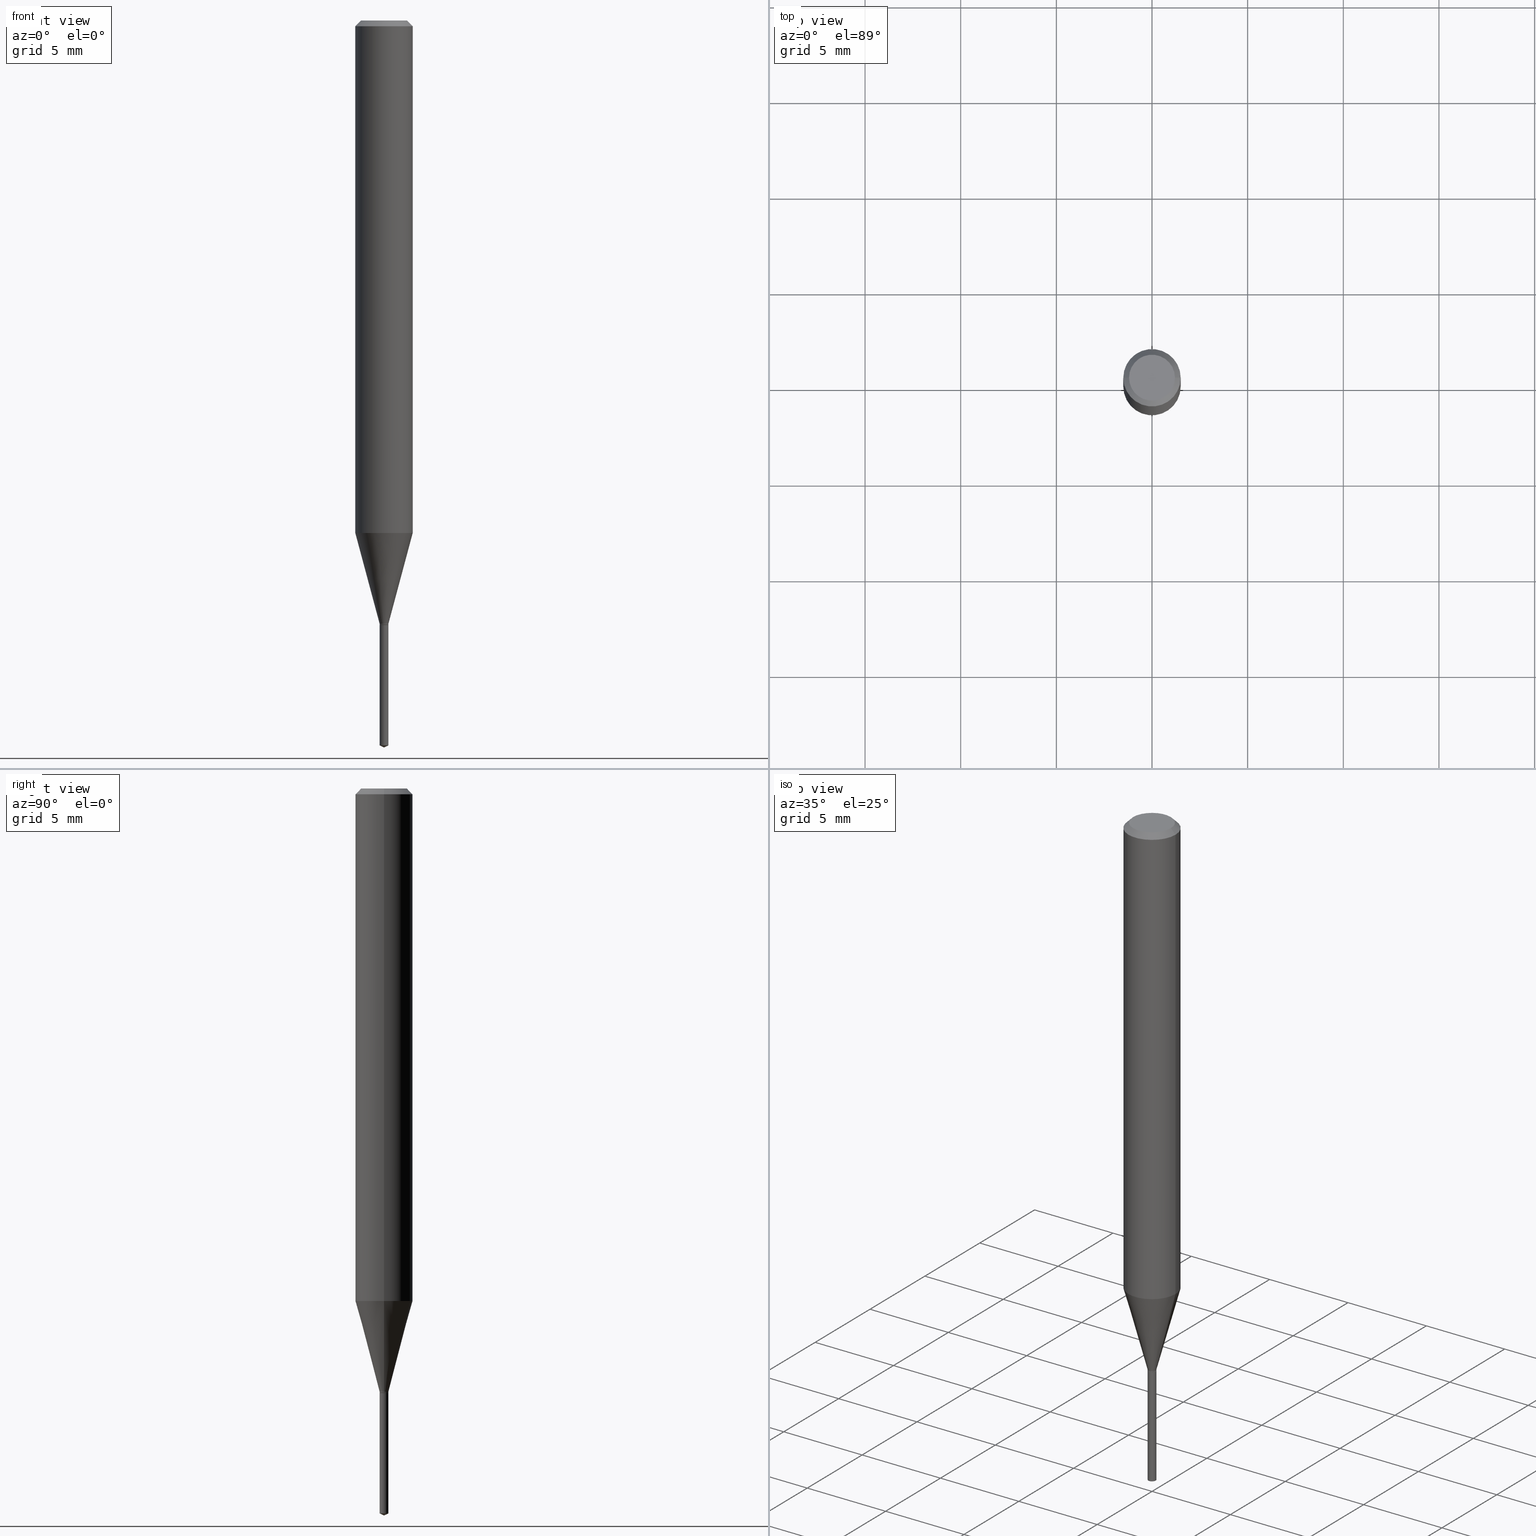
[diagram: canonical four-view strip — front | top / right | iso, engineering-drawing reading convention]
A machine part, canonical four-view strip (front | top / right | iso — engineering-drawing reading convention). The complete STEP part file that produces these views, byte-faithful:
ISO-10303-21;
HEADER;
FILE_DESCRIPTION (( 'STEP AP203' ),
    '1' );
FILE_NAME ('07421.STEP',
    '2024-04-23T21:16:01',
    ( '' ),
    ( '' ),
    'SwSTEP 2.0',
    'SolidWorks 2023',
    '' );
FILE_SCHEMA (( 'CONFIG_CONTROL_DESIGN' ));
ENDSEC;

DATA;
#1 = PRODUCT ( '07421', '07421', '', ( #212 ) ) ;
#2 = ORIENTED_EDGE ( 'NONE', *, *, #378, .T. ) ;
#3 = CARTESIAN_POINT ( 'NONE',  ( -6.319581223303030137E-17, -0.009050000000004347969, -1.244099999999999984 ) ) ;
#4 = ADVANCED_FACE ( 'NONE', ( #449 ), #436, .T. ) ;
#5 = VERTEX_POINT ( 'NONE', #65 ) ;
#6 = VERTEX_POINT ( 'NONE', #228 ) ;
#7 = LINE ( 'NONE', #387, #154 ) ;
#8 = AXIS2_PLACEMENT_3D ( 'NONE', #207, #332, #132 ) ;
#9 = CARTESIAN_POINT ( 'NONE',  ( 3.035804975998228821E-29, -4.334324934039881032E-15, -1.241400000000000059 ) ) ;
#10 =( GEOMETRIC_REPRESENTATION_CONTEXT ( 3 ) GLOBAL_UNCERTAINTY_ASSIGNED_CONTEXT ( ( #225 ) ) GLOBAL_UNIT_ASSIGNED_CONTEXT ( ( #79, #370, #443 ) ) REPRESENTATION_CONTEXT ( 'NONE', 'WORKASPACE' ) );
#11 = EDGE_LOOP ( 'NONE', ( #413, #466, #432, #487 ) ) ;
#12 = FACE_OUTER_BOUND ( 'NONE', #268, .T. ) ;
#13 = CARTESIAN_POINT ( 'NONE',  ( 6.430411758632554466E-17, 0.009049999999994789643, -1.491879915693697267 ) ) ;
#14 = EDGE_CURVE ( 'NONE', #113, #233, #173, .T. ) ;
#15 = LINE ( 'NONE', #328, #217 ) ;
#16 = ORIENTED_EDGE ( 'NONE', *, *, #14, .F. ) ;
#17 = DIRECTION ( 'NONE',  ( -2.445468806185136597E-29, 3.491481338843145583E-15, 1.000000000000000000 ) ) ;
#18 = CARTESIAN_POINT ( 'NONE',  ( -0.009050000000000000752, 6.430411758628907217E-17, -4.451636256680690185E-31 ) ) ;
#19 = VECTOR ( 'NONE', #276, 39.37007874015748143 ) ;
#20 = CIRCLE ( 'NONE', #101, 0.008550000000000000308 ) ;
#21 = CARTESIAN_POINT ( 'NONE',  ( -0.009050000000000000752, -4.273861445926320044E-15, -1.243600000000000039 ) ) ;
#22 = EDGE_CURVE ( 'NONE', #5, #281, #349, .T. ) ;
#23 = ORIENTED_EDGE ( 'NONE', *, *, #329, .F. ) ;
#24 = AXIS2_PLACEMENT_3D ( 'NONE', #490, #415, #304 ) ;
#25 = CALENDAR_DATE ( 2024, 23, 4 ) ;
#26 = PRODUCT_DEFINITION_FORMATION_WITH_SPECIFIED_SOURCE ( 'ANY', '', #1, .NOT_KNOWN. ) ;
#27 = DIRECTION ( 'NONE',  ( 1.000000000000000000, 0.000000000000000000, 0.000000000000000000 ) ) ;
#28 = CARTESIAN_POINT ( 'NONE',  ( -0.009050000000000000752, -4.270020816453591948E-15, -1.241400000000000059 ) ) ;
#29 = FACE_OUTER_BOUND ( 'NONE', #375, .T. ) ;
#30 = PERSON ( 'UNSPECIFIED', 'UNSPECIFIED', 'UNSPECIFIED', ('UNSPECIFIED'), ('UNSPECIFIED'), ('UNSPECIFIED') ) ;
#31 = DIRECTION ( 'NONE',  ( 0.000000000000000000, 0.000000000000000000, 1.000000000000000000 ) ) ;
#32 = DIRECTION ( 'NONE',  ( 0.7071067811866191821, -2.468850131083007662E-15, 0.7071067811864758523 ) ) ;
#33 = AXIS2_PLACEMENT_3D ( 'NONE', #299, #98, #262 ) ;
#34 = MANIFOLD_SOLID_BREP ( 'Body-Move/Copy2[2]', #478 ) ;
#35 = PLANE ( 'NONE',  #33 ) ;
#36 = ORIENTED_EDGE ( 'NONE', *, *, #440, .T. ) ;
#37 = DIRECTION ( 'NONE',  ( -2.445468806185136877E-29, 3.491481338843145188E-15, 1.000000000000000000 ) ) ;
#38 = DIRECTION ( 'NONE',  ( -0.7071067811866191821, 7.493145998870612907E-15, 0.7071067811864758523 ) ) ;
#39 = ORIENTED_EDGE ( 'NONE', *, *, #378, .F. ) ;
#40 = CC_DESIGN_PERSON_AND_ORGANIZATION_ASSIGNMENT ( #85, #52, ( #26 ) ) ;
#41 = DIRECTION ( 'NONE',  ( 1.000000000000000000, -6.982962677686262766E-15, 0.000000000000000000 ) ) ;
#42 = FACE_OUTER_BOUND ( 'NONE', #160, .T. ) ;
#43 = ORIENTED_EDGE ( 'NONE', *, *, #59, .T. ) ;
#44 = CARTESIAN_POINT ( 'NONE',  ( 2.888098660104664204E-31, -4.123439461173780263E-17, -0.01181000000000007218 ) ) ;
#45 = ORIENTED_EDGE ( 'NONE', *, *, #450, .F. ) ;
#46 = EDGE_CURVE ( 'NONE', #67, #190, #235, .T. ) ;
#47 = FACE_OUTER_BOUND ( 'NONE', #385, .T. ) ;
#48 = DIRECTION ( 'NONE',  ( 1.000000000000000000, -6.982962677686266711E-15, 4.876176775795935793E-29 ) ) ;
#49 = DIRECTION ( 'NONE',  ( -2.445468806185136597E-29, 3.491481338843145583E-15, 1.000000000000000000 ) ) ;
#50 = AXIS2_PLACEMENT_3D ( 'NONE', #184, #346, #232 ) ;
#51 = CARTESIAN_POINT ( 'NONE',  ( 0.000000000000000000, 0.000000000000000000, 0.000000000000000000 ) ) ;
#52 = PERSON_AND_ORGANIZATION_ROLE ( 'design_supplier' ) ;
#53 = COORDINATED_UNIVERSAL_TIME_OFFSET ( 5, 0, .BEHIND. ) ;
#54 = AXIS2_PLACEMENT_3D ( 'NONE', #186, #382, #97 ) ;
#55 = CYLINDRICAL_SURFACE ( 'NONE', #8, 0.009050000000000002487 ) ;
#56 = EDGE_CURVE ( 'NONE', #344, #281, #215, .T. ) ;
#57 = LINE ( 'NONE', #28, #110 ) ;
#58 = DIRECTION ( 'NONE',  ( -2.445468806185136597E-29, 3.491481338843145583E-15, 1.000000000000000000 ) ) ;
#59 = EDGE_CURVE ( 'NONE', #391, #6, #294, .T. ) ;
#60 = CARTESIAN_POINT ( 'NONE',  ( 0.000000000000000000, 0.000000000000000000, 0.000000000000000000 ) ) ;
#61 = LOCAL_TIME ( 17, 16, 1.000000000000000000, #296 ) ;
#62 = FACE_OUTER_BOUND ( 'NONE', #218, .T. ) ;
#63 = ORIENTED_EDGE ( 'NONE', *, *, #259, .T. ) ;
#64 = VERTEX_POINT ( 'NONE', #407 ) ;
#65 = CARTESIAN_POINT ( 'NONE',  ( -0.05905000000000013710, -3.263230161061479349E-15, -1.054797459621556133 ) ) ;
#66 = CARTESIAN_POINT ( 'NONE',  ( 0.009050000000000000752, -6.319581223306072182E-17, 4.412939982095322362E-31 ) ) ;
#67 = VERTEX_POINT ( 'NONE', #445 ) ;
#68 = ADVANCED_FACE ( 'NONE', ( #93 ), #162, .T. ) ;
#69 = AXIS2_PLACEMENT_3D ( 'NONE', #152, #425, #236 ) ;
#70 = VERTEX_POINT ( 'NONE', #171 ) ;
#71 = DIRECTION ( 'NONE',  ( -2.433949354103485076E-29, 3.507977849870565923E-15, 1.000000000000000000 ) ) ;
#72 = EDGE_LOOP ( 'NONE', ( #116, #231, #149, #302 ) ) ;
#73 = ADVANCED_FACE ( 'NONE', ( #29 ), #479, .T. ) ;
#74 = CARTESIAN_POINT ( 'NONE',  ( -0.05904999999999999832, -1.442444535103438398E-15, -0.01181000000000007218 ) ) ;
#75 = CARTESIAN_POINT ( 'NONE',  ( 0.009050000000000000752, -4.405202005218396444E-15, -1.243600000000000039 ) ) ;
#76 = EDGE_CURVE ( 'NONE', #246, #381, #290, .T. ) ;
#77 = ORIENTED_EDGE ( 'NONE', *, *, #482, .F. ) ;
#78 = AXIS2_PLACEMENT_3D ( 'NONE', #301, #484, #105 ) ;
#79 =( CONVERSION_BASED_UNIT ( 'INCH', #428 ) LENGTH_UNIT ( ) NAMED_UNIT ( #248 ) );
#80 = CYLINDRICAL_SURFACE ( 'NONE', #374, 0.009050000000000000752 ) ;
#81 = ORIENTED_EDGE ( 'NONE', *, *, #333, .F. ) ;
#82 = EDGE_CURVE ( 'NONE', #314, #5, #57, .T. ) ;
#83 = CARTESIAN_POINT ( 'NONE',  ( -0.04724000000000000421, 3.504923541997677355E-16, -3.380025165670481712E-19 ) ) ;
#84 = ORIENTED_EDGE ( 'NONE', *, *, #444, .F. ) ;
#85 = PERSON_AND_ORGANIZATION ( #30, #461 ) ;
#86 = FACE_OUTER_BOUND ( 'NONE', #353, .T. ) ;
#87 = ORIENTED_EDGE ( 'NONE', *, *, #329, .T. ) ;
#88 = VECTOR ( 'NONE', #288, 39.37007874015748143 ) ;
#89 = CALENDAR_DATE ( 2024, 23, 4 ) ;
#90 = ADVANCED_FACE ( 'NONE', ( #476 ), #175, .T. ) ;
#91 = CIRCLE ( 'NONE', #405, 0.009050000000000004222 ) ;
#92 = CARTESIAN_POINT ( 'NONE',  ( 0.000000000000000000, 0.000000000000000000, 0.000000000000000000 ) ) ;
#93 = FACE_OUTER_BOUND ( 'NONE', #453, .T. ) ;
#94 = EDGE_CURVE ( 'NONE', #233, #113, #255, .T. ) ;
#95 = DATE_AND_TIME ( #208, #61 ) ;
#96 = APPROVAL_STATUS ( 'not_yet_approved' ) ;
#97 = DIRECTION ( 'NONE',  ( -6.982962677686265922E-15, -1.000000000000000000, 0.000000000000000000 ) ) ;
#98 = DIRECTION ( 'NONE',  ( 2.438088387897960049E-29, -3.491481338843145188E-15, -1.000000000000000000 ) ) ;
#99 = CIRCLE ( 'NONE', #200, 0.009050000000000000752 ) ;
#100 = AXIS2_PLACEMENT_3D ( 'NONE', #9, #112, #412 ) ;
#101 = AXIS2_PLACEMENT_3D ( 'NONE', #471, #401, #464 ) ;
#102 = EDGE_LOOP ( 'NONE', ( #278, #457, #303, #145 ) ) ;
#103 = FACE_OUTER_BOUND ( 'NONE', #104, .T. ) ;
#104 = EDGE_LOOP ( 'NONE', ( #429, #307, #358, #121 ) ) ;
#105 = DIRECTION ( 'NONE',  ( -1.000000000000000000, 6.982962677686266711E-15, 0.000000000000000000 ) ) ;
#106 = ORIENTED_EDGE ( 'NONE', *, *, #367, .T. ) ;
#107 = ADVANCED_FACE ( 'NONE', ( #62 ), #336, .F. ) ;
#108 = ORIENTED_EDGE ( 'NONE', *, *, #323, .F. ) ;
#109 = DIRECTION ( 'NONE',  ( -2.445468806185136597E-29, 3.491481338843145583E-15, 1.000000000000000000 ) ) ;
#110 = VECTOR ( 'NONE', #220, 39.37007874015747433 ) ;
#111 = APPROVAL_PERSON_ORGANIZATION ( #474, #230, #169 ) ;
#112 = DIRECTION ( 'NONE',  ( -2.445468806185136597E-29, 3.491481338843145583E-15, 1.000000000000000000 ) ) ;
#113 = VERTEX_POINT ( 'NONE', #258 ) ;
#114 = ADVANCED_FACE ( 'NONE', ( #216 ), #35, .F. ) ;
#115 = LINE ( 'NONE', #198, #88 ) ;
#116 = ORIENTED_EDGE ( 'NONE', *, *, #440, .F. ) ;
#117 = APPLICATION_CONTEXT ( 'configuration controlled 3d designs of mechanical parts and assemblies' ) ;
#118 = CARTESIAN_POINT ( 'NONE',  ( -9.216901474160064469E-28, 1.328816018163103804E-13, 37.87397874015748300 ) ) ;
#119 = VECTOR ( 'NONE', #219, 39.37007874015748143 ) ;
#120 = FACE_OUTER_BOUND ( 'NONE', #226, .T. ) ;
#121 = ORIENTED_EDGE ( 'NONE', *, *, #180, .F. ) ;
#122 = FACE_OUTER_BOUND ( 'NONE', #153, .T. ) ;
#123 = DIRECTION ( 'NONE',  ( -2.445468806185136597E-29, 3.491481338843145583E-15, 1.000000000000000000 ) ) ;
#124 = VERTEX_POINT ( 'NONE', #411 ) ;
#125 = ADVANCED_FACE ( 'NONE', ( #131 ), #55, .T. ) ;
#126 = DIRECTION ( 'NONE',  ( 1.000000000000000000, -6.982962677686266711E-15, 4.876176775795935793E-29 ) ) ;
#127 = PERSON_AND_ORGANIZATION ( #30, #461 ) ;
#128 = CIRCLE ( 'NONE', #330, 0.05904999999999999832 ) ;
#129 = PERSON_AND_ORGANIZATION ( #30, #461 ) ;
#130 = ADVANCED_FACE ( 'NONE', ( #12 ), #438, .T. ) ;
#131 = FACE_OUTER_BOUND ( 'NONE', #72, .T. ) ;
#132 = DIRECTION ( 'NONE',  ( -6.982962677686265922E-15, -1.000000000000000000, 0.000000000000000000 ) ) ;
#133 = CARTESIAN_POINT ( 'NONE',  ( 3.042407741774928155E-29, -4.343751933654757151E-15, -1.244099999999999984 ) ) ;
#134 = AXIS2_PLACEMENT_3D ( 'NONE', #60, #31, #27 ) ;
#135 = DIRECTION ( 'NONE',  ( 2.433949354103484515E-29, -3.507977849870566318E-15, -1.000000000000000000 ) ) ;
#136 = CALENDAR_DATE ( 2024, 23, 4 ) ;
#137 = ADVANCED_FACE ( 'NONE', ( #103 ), #354, .T. ) ;
#138 = LINE ( 'NONE', #66, #140 ) ;
#139 = ORIENTED_EDGE ( 'NONE', *, *, #450, .T. ) ;
#140 = VECTOR ( 'NONE', #37, 39.37007874015748143 ) ;
#141 = LOCAL_TIME ( 17, 16, 1.000000000000000000, #53 ) ;
#142 = APPROVAL ( #324, 'UNSPECIFIED' ) ;
#143 = CARTESIAN_POINT ( 'NONE',  ( 3.042407741774928155E-29, -4.343751933654757151E-15, -1.244099999999999984 ) ) ;
#144 = CARTESIAN_POINT ( 'NONE',  ( 3.645491507537419124E-29, -5.212958389551043187E-15, -1.491879915693697267 ) ) ;
#145 = ORIENTED_EDGE ( 'NONE', *, *, #157, .F. ) ;
#146 = CARTESIAN_POINT ( 'NONE',  ( -0.05905000000000006771, 4.195754854663396409E-16, -2.904631170795525045E-30 ) ) ;
#147 = DIRECTION ( 'NONE',  ( 1.000000000000000000, -6.982962677686262766E-15, 0.000000000000000000 ) ) ;
#148 = CC_DESIGN_APPROVAL ( #395, ( #26 ) ) ;
#149 = ORIENTED_EDGE ( 'NONE', *, *, #280, .T. ) ;
#150 = DIRECTION ( 'NONE',  ( -6.328713451373380423E-15, -0.9063077870366499367, 0.4226182617406991082 ) ) ;
#151 = EDGE_LOOP ( 'NONE', ( #43, #139 ) ) ;
#152 = CARTESIAN_POINT ( 'NONE',  ( 3.042407741774928155E-29, -4.343751933654757151E-15, -1.244099999999999984 ) ) ;
#153 = EDGE_LOOP ( 'NONE', ( #81, #305, #23 ) ) ;
#154 = VECTOR ( 'NONE', #150, 39.37007874015748854 ) ;
#155 = DIRECTION ( 'NONE',  ( -2.445468806185136597E-29, 3.491481338843145583E-15, 1.000000000000000000 ) ) ;
#156 = DIRECTION ( 'NONE',  ( -2.445468806185136877E-29, 3.491481338843145188E-15, 1.000000000000000000 ) ) ;
#157 = EDGE_CURVE ( 'NONE', #281, #344, #128, .T. ) ;
#158 = ORIENTED_EDGE ( 'NONE', *, *, #164, .T. ) ;
#159 = DIRECTION ( 'NONE',  ( -6.982962677686265922E-15, -1.000000000000000000, 0.000000000000000000 ) ) ;
#160 = EDGE_LOOP ( 'NONE', ( #158, #347, #39, #397 ) ) ;
#161 = EDGE_CURVE ( 'NONE', #381, #441, #99, .T. ) ;
#162 = CYLINDRICAL_SURFACE ( 'NONE', #300, 0.05905000000000006771 ) ;
#163 = DIRECTION ( 'NONE',  ( -6.982962677686267499E-15, -1.000000000000000000, 3.520397390770434543E-15 ) ) ;
#164 = EDGE_CURVE ( 'NONE', #67, #314, #362, .T. ) ;
#165 = AXIS2_PLACEMENT_3D ( 'NONE', #309, #109, #488 ) ;
#166 = AXIS2_PLACEMENT_3D ( 'NONE', #396, #49, #250 ) ;
#167 = VECTOR ( 'NONE', #156, 39.37007874015748143 ) ;
#168 = APPLICATION_PROTOCOL_DEFINITION ( 'international standard', 'config_control_design', 1994, #117 ) ;
#169 = APPROVAL_ROLE ( '' ) ;
#170 = ADVANCED_FACE ( 'NONE', ( #260 ), #339, .T. ) ;
#171 = CARTESIAN_POINT ( 'NONE',  ( -0.008550000000000000308, -4.280351302573157764E-15, -1.244099999999999984 ) ) ;
#172 = PERSON_AND_ORGANIZATION_ROLE ( 'design_owner' ) ;
#173 = CIRCLE ( 'NONE', #54, 0.009050000000000000752 ) ;
#174 = PRODUCT_DEFINITION ( 'UNKNOWN', '', #26, #369 ) ;
#175 = CONICAL_SURFACE ( 'NONE', #261, 0.008550000000000000308, 0.7853981633975496424 ) ;
#176 = DIRECTION ( 'NONE',  ( -6.982962677686265922E-15, -1.000000000000000000, 0.000000000000000000 ) ) ;
#177 = CIRCLE ( 'NONE', #442, 0.04724000000000000421 ) ;
#178 = APPROVAL_DATE_TIME ( #95, #230 ) ;
#179 = ORIENTED_EDGE ( 'NONE', *, *, #323, .T. ) ;
#180 = EDGE_CURVE ( 'NONE', #441, #381, #389, .T. ) ;
#181 = ORIENTED_EDGE ( 'NONE', *, *, #333, .T. ) ;
#182 = AXIS2_PLACEMENT_3D ( 'NONE', #143, #71, #350 ) ;
#183 = CC_DESIGN_APPROVAL ( #142, ( #249 ) ) ;
#184 = CARTESIAN_POINT ( 'NONE',  ( 3.042407741774928155E-29, -4.343751933654757151E-15, -1.244099999999999984 ) ) ;
#185 = ORIENTED_EDGE ( 'NONE', *, *, #367, .F. ) ;
#186 = CARTESIAN_POINT ( 'NONE',  ( 3.042407741774928155E-29, -4.343751933654757151E-15, -1.244099999999999984 ) ) ;
#187 = CARTESIAN_POINT ( 'NONE',  ( -0.009050000000000000752, -4.273861445926320044E-15, -1.241400000000000059 ) ) ;
#188 = ORIENTED_EDGE ( 'NONE', *, *, #14, .T. ) ;
#189 = DIRECTION ( 'NONE',  ( -6.982962677686265922E-15, -1.000000000000000000, 0.000000000000000000 ) ) ;
#190 = VERTEX_POINT ( 'NONE', #229 ) ;
#191 = CIRCLE ( 'NONE', #100, 0.009050000000000000752 ) ;
#192 = ORIENTED_EDGE ( 'NONE', *, *, #161, .T. ) ;
#193 = APPLICATION_CONTEXT ( 'configuration controlled 3d designs of mechanical parts and assemblies' ) ;
#194 = CARTESIAN_POINT ( 'NONE',  ( 3.645491507537419124E-29, -5.212958389551043187E-15, -1.491879915693697267 ) ) ;
#195 = ORIENTED_EDGE ( 'NONE', *, *, #214, .F. ) ;
#196 = SHAPE_DEFINITION_REPRESENTATION ( #264, #203 ) ;
#197 = EDGE_CURVE ( 'NONE', #190, #344, #421, .T. ) ;
#198 = CARTESIAN_POINT ( 'NONE',  ( 3.670345667395058439E-29, -5.207239042452925869E-15, -1.496099999999999985 ) ) ;
#199 = SECURITY_CLASSIFICATION_LEVEL ( 'unclassified' ) ;
#200 = AXIS2_PLACEMENT_3D ( 'NONE', #313, #306, #147 ) ;
#201 = CC_DESIGN_SECURITY_CLASSIFICATION ( #249, ( #26 ) ) ;
#202 = CARTESIAN_POINT ( 'NONE',  ( 0.05904999999999999832, -4.535783407291118600E-16, -0.01181000000000007218 ) ) ;
#203 = ADVANCED_BREP_SHAPE_REPRESENTATION ( '07421', ( #364, #34, #134 ), #10 ) ;
#204 = DATE_TIME_ROLE ( 'classification_date' ) ;
#205 = ADVANCED_FACE ( 'NONE', ( #454 ), #409, .T. ) ;
#206 = CIRCLE ( 'NONE', #335, 0.05905000000000013710 ) ;
#207 = CARTESIAN_POINT ( 'NONE',  ( 3.042407741774928155E-29, -4.343751933654757151E-15, -1.244099999999999984 ) ) ;
#208 = CALENDAR_DATE ( 2024, 23, 4 ) ;
#209 = CARTESIAN_POINT ( 'NONE',  ( 0.008550000000000000308, -4.403456264548975729E-15, -1.244099999999999984 ) ) ;
#210 = DIRECTION ( 'NONE',  ( 1.000000000000000000, -6.982962677686266711E-15, 4.876176775795936353E-29 ) ) ;
#211 = DIRECTION ( 'NONE',  ( -2.445468806185136597E-29, 3.491481338843145583E-15, 1.000000000000000000 ) ) ;
#212 = MECHANICAL_CONTEXT ( 'NONE', #117, 'mechanical' ) ;
#213 = AXIS2_PLACEMENT_3D ( 'NONE', #266, #416, #351 ) ;
#214 = EDGE_CURVE ( 'NONE', #314, #67, #191, .T. ) ;
#215 = CIRCLE ( 'NONE', #399, 0.05904999999999999832 ) ;
#216 = FACE_OUTER_BOUND ( 'NONE', #151, .T. ) ;
#217 = VECTOR ( 'NONE', #435, 39.37007874015748143 ) ;
#218 = EDGE_LOOP ( 'NONE', ( #188, #237 ) ) ;
#219 = DIRECTION ( 'NONE',  ( -2.445468806185136877E-29, 3.491481338843145188E-15, 1.000000000000000000 ) ) ;
#220 = DIRECTION ( 'NONE',  ( -0.2588190451025213501, 5.211531920934551042E-15, 0.9659258262890682012 ) ) ;
#221 = ORIENTED_EDGE ( 'NONE', *, *, #197, .F. ) ;
#222 = DIRECTION ( 'NONE',  ( -2.433949354103485076E-29, 3.507977849870566318E-15, 1.000000000000000000 ) ) ;
#223 = ORIENTED_EDGE ( 'NONE', *, *, #76, .F. ) ;
#224 = LINE ( 'NONE', #379, #480 ) ;
#225 = UNCERTAINTY_MEASURE_WITH_UNIT (LENGTH_MEASURE( 1.000000000000000082E-05 ), #79, 'distance_accuracy_value', 'NONE');
#226 = EDGE_LOOP ( 'NONE', ( #108, #77 ) ) ;
#227 = AXIS2_PLACEMENT_3D ( 'NONE', #376, #422, #352 ) ;
#228 = CARTESIAN_POINT ( 'NONE',  ( 0.04724000000000000421, -3.852183633974369345E-16, -3.380025165621689721E-19 ) ) ;
#229 = CARTESIAN_POINT ( 'NONE',  ( 0.05905000000000013710, -4.095149592645195340E-15, -1.054797459621556133 ) ) ;
#230 = APPROVAL ( #406, 'UNSPECIFIED' ) ;
#231 = ORIENTED_EDGE ( 'NONE', *, *, #444, .T. ) ;
#232 = DIRECTION ( 'NONE',  ( 1.000000000000000000, -6.982962677686315620E-15, 0.000000000000000000 ) ) ;
#233 = VERTEX_POINT ( 'NONE', #267 ) ;
#234 = DIRECTION ( 'NONE',  ( -1.000000000000000000, 6.982962677686266711E-15, 0.000000000000000000 ) ) ;
#235 = LINE ( 'NONE', #241, #373 ) ;
#236 = DIRECTION ( 'NONE',  ( 1.000000000000000000, -6.982962677686265922E-15, 4.876176775795935793E-29 ) ) ;
#237 = ORIENTED_EDGE ( 'NONE', *, *, #94, .T. ) ;
#238 = AXIS2_PLACEMENT_3D ( 'NONE', #371, #338, #176 ) ;
#239 = CYLINDRICAL_SURFACE ( 'NONE', #166, 0.05905000000000006771 ) ;
#240 = CC_DESIGN_DATE_AND_TIME_ASSIGNMENT ( #293, #204, ( #249 ) ) ;
#241 = CARTESIAN_POINT ( 'NONE',  ( 0.009050000000000000752, -4.397520746272941828E-15, -1.241400000000000059 ) ) ;
#242 = DIRECTION ( 'NONE',  ( -2.433949354103485076E-29, 3.507977849870565923E-15, 1.000000000000000000 ) ) ;
#243 = EDGE_LOOP ( 'NONE', ( #423, #269, #106, #251 ) ) ;
#244 = CALENDAR_DATE ( 2024, 23, 4 ) ;
#245 = FACE_OUTER_BOUND ( 'NONE', #102, .T. ) ;
#246 = VERTEX_POINT ( 'NONE', #274 ) ;
#247 = PERSON_AND_ORGANIZATION ( #30, #461 ) ;
#248 = DIMENSIONAL_EXPONENTS ( 1.000000000000000000, 0.000000000000000000, 0.000000000000000000, 0.000000000000000000, 0.000000000000000000, 0.000000000000000000, 0.000000000000000000 ) ;
#249 = SECURITY_CLASSIFICATION ( '', '', #199 ) ;
#250 = DIRECTION ( 'NONE',  ( 1.000000000000000000, -6.982962677686266711E-15, 4.876176775795936353E-29 ) ) ;
#251 = ORIENTED_EDGE ( 'NONE', *, *, #157, .T. ) ;
#252 = COORDINATED_UNIVERSAL_TIME_OFFSET ( 5, 0, .BEHIND. ) ;
#253 = EDGE_CURVE ( 'NONE', #5, #190, #388, .T. ) ;
#254 = PERSON_AND_ORGANIZATION ( #30, #461 ) ;
#255 = CIRCLE ( 'NONE', #238, 0.009050000000000000752 ) ;
#256 = CIRCLE ( 'NONE', #380, 0.009050000000000004222 ) ;
#257 = ADVANCED_FACE ( 'NONE', ( #42 ), #430, .T. ) ;
#258 = CARTESIAN_POINT ( 'NONE',  ( -6.319581223303028904E-17, -0.009050000000004344500, -1.244099999999999984 ) ) ;
#259 = EDGE_CURVE ( 'NONE', #381, #67, #138, .T. ) ;
#260 = FACE_OUTER_BOUND ( 'NONE', #360, .T. ) ;
#261 = AXIS2_PLACEMENT_3D ( 'NONE', #133, #211, #477 ) ;
#262 = DIRECTION ( 'NONE',  ( -1.000000000000000000, 6.982962677686265922E-15, -4.876176775795935793E-29 ) ) ;
#263 = CARTESIAN_POINT ( 'NONE',  ( 0.05905000000000006771, -4.123439461173745257E-16, 2.879382386107503723E-30 ) ) ;
#264 = PRODUCT_DEFINITION_SHAPE ( 'NONE', 'NONE',  #174 ) ;
#265 = ORIENTED_EDGE ( 'NONE', *, *, #22, .T. ) ;
#266 = CARTESIAN_POINT ( 'NONE',  ( 3.035804975998228821E-29, -4.334324934039881032E-15, -1.241400000000000059 ) ) ;
#267 = CARTESIAN_POINT ( 'NONE',  ( 6.430411758632560629E-17, 0.009049999999995657005, -1.244099999999999984 ) ) ;
#268 = EDGE_LOOP ( 'NONE', ( #45, #418, #455, #185 ) ) ;
#269 = ORIENTED_EDGE ( 'NONE', *, *, #59, .F. ) ;
#270 = LINE ( 'NONE', #3, #282 ) ;
#271 = CLOSED_SHELL ( 'NONE', ( #170, #433, #383, #125, #107 ) ) ;
#272 = AXIS2_PLACEMENT_3D ( 'NONE', #317, #242, #359 ) ;
#273 = PRODUCT_RELATED_PRODUCT_CATEGORY ( 'detail', '', ( #1 ) ) ;
#274 = CARTESIAN_POINT ( 'NONE',  ( 0.008550000000000000308, -4.403456264548975729E-15, -1.244099999999999984 ) ) ;
#275 = ORIENTED_EDGE ( 'NONE', *, *, #259, .F. ) ;
#276 = DIRECTION ( 'NONE',  ( -2.445468806185136877E-29, 3.491481338843145188E-15, 1.000000000000000000 ) ) ;
#277 =( LENGTH_UNIT ( ) NAMED_UNIT ( * ) SI_UNIT ( $, .METRE. ) );
#278 = ORIENTED_EDGE ( 'NONE', *, *, #22, .F. ) ;
#279 = DIRECTION ( 'NONE',  ( -0.7071067811865453523, 2.468850131082234184E-15, -0.7071067811865496822 ) ) ;
#280 = EDGE_CURVE ( 'NONE', #124, #113, #270, .T. ) ;
#281 = VERTEX_POINT ( 'NONE', #74 ) ;
#282 = VECTOR ( 'NONE', #222, 39.37007874015748143 ) ;
#283 = APPROVAL_PERSON_ORGANIZATION ( #129, #142, #437 ) ;
#284 = DIRECTION ( 'NONE',  ( -2.445468806185136597E-29, 3.491481338843145583E-15, 1.000000000000000000 ) ) ;
#285 = DATE_AND_TIME ( #89, #410 ) ;
#286 = LINE ( 'NONE', #318, #343 ) ;
#287 = ORIENTED_EDGE ( 'NONE', *, *, #402, .F. ) ;
#288 = DIRECTION ( 'NONE',  ( 6.439704144417036664E-15, 0.9063077870366530453, 0.4226182617406928910 ) ) ;
#289 = APPROVAL_DATE_TIME ( #398, #395 ) ;
#290 = LINE ( 'NONE', #209, #467 ) ;
#291 = CONICAL_SURFACE ( 'NONE', #295, 84.42940631927480410, 1.134464013796318005 ) ;
#292 = PERSON_AND_ORGANIZATION_ROLE ( 'creator' ) ;
#293 = DATE_AND_TIME ( #25, #312 ) ;
#294 = CIRCLE ( 'NONE', #485, 0.04724000000000000421 ) ;
#295 = AXIS2_PLACEMENT_3D ( 'NONE', #118, #357, #163 ) ;
#296 = COORDINATED_UNIVERSAL_TIME_OFFSET ( 5, 0, .BEHIND. ) ;
#297 = EDGE_CURVE ( 'NONE', #70, #441, #224, .T. ) ;
#298 = DATE_TIME_ROLE ( 'creation_date' ) ;
#299 = CARTESIAN_POINT ( 'NONE',  ( 4.132873053354867254E-48, -5.900647395337818946E-34, -1.690012582823346072E-19 ) ) ;
#300 = AXIS2_PLACEMENT_3D ( 'NONE', #92, #58, #210 ) ;
#301 = CARTESIAN_POINT ( 'NONE',  ( 2.888098660104664204E-31, -4.123439461173780263E-17, -0.01181000000000007218 ) ) ;
#302 = ORIENTED_EDGE ( 'NONE', *, *, #94, .F. ) ;
#303 = ORIENTED_EDGE ( 'NONE', *, *, #197, .T. ) ;
#304 = DIRECTION ( 'NONE',  ( 1.000000000000000000, -6.982962677686315620E-15, 0.000000000000000000 ) ) ;
#305 = ORIENTED_EDGE ( 'NONE', *, *, #402, .T. ) ;
#306 = DIRECTION ( 'NONE',  ( -2.445468806185136597E-29, 3.491481338843145583E-15, 1.000000000000000000 ) ) ;
#307 = ORIENTED_EDGE ( 'NONE', *, *, #482, .T. ) ;
#308 = CC_DESIGN_PERSON_AND_ORGANIZATION_ASSIGNMENT ( #247, #366, ( #249 ) ) ;
#309 = CARTESIAN_POINT ( 'NONE',  ( 3.035804975998228821E-29, -4.334324934039881032E-15, -1.241400000000000059 ) ) ;
#310 = CARTESIAN_POINT ( 'NONE',  ( 2.888098660104664204E-31, -4.123439461173780263E-17, -0.01181000000000007218 ) ) ;
#311 = AXIS2_PLACEMENT_3D ( 'NONE', #481, #135, #446 ) ;
#312 = LOCAL_TIME ( 17, 16, 1.000000000000000000, #392 ) ;
#313 = CARTESIAN_POINT ( 'NONE',  ( 3.041185007371835914E-29, -4.342006192985336437E-15, -1.243600000000000039 ) ) ;
#314 = VERTEX_POINT ( 'NONE', #187 ) ;
#315 = CC_DESIGN_PERSON_AND_ORGANIZATION_ASSIGNMENT ( #403, #469, ( #26 ) ) ;
#316 = CARTESIAN_POINT ( 'NONE',  ( 8.265746106709734507E-48, -1.180129479067563789E-33, -3.380025165646692144E-19 ) ) ;
#317 = CARTESIAN_POINT ( 'NONE',  ( -9.216901474160064469E-28, 1.328816018163103804E-13, 37.87397874015748300 ) ) ;
#318 = CARTESIAN_POINT ( 'NONE',  ( 6.430411758631950494E-17, 0.009049999999995658739, -1.244099999999999984 ) ) ;
#319 = ORIENTED_EDGE ( 'NONE', *, *, #164, .F. ) ;
#320 = AXIS2_PLACEMENT_3D ( 'NONE', #462, #460, #41 ) ;
#321 = DIRECTION ( 'NONE',  ( 1.000000000000000000, -6.982962677686266711E-15, 4.876185090822587894E-29 ) ) ;
#322 = ORIENTED_EDGE ( 'NONE', *, *, #297, .T. ) ;
#323 = EDGE_CURVE ( 'NONE', #246, #70, #342, .T. ) ;
#324 = APPROVAL_STATUS ( 'not_yet_approved' ) ;
#325 = CARTESIAN_POINT ( 'NONE',  ( 8.265746106709734507E-48, -1.180129479067563789E-33, -3.380025165646692144E-19 ) ) ;
#326 = COORDINATED_UNIVERSAL_TIME_OFFSET ( 5, 0, .BEHIND. ) ;
#327 = CARTESIAN_POINT ( 'NONE',  ( 0.000000000000000000, 0.000000000000000000, 0.000000000000000000 ) ) ;
#328 = CARTESIAN_POINT ( 'NONE',  ( 0.05904999999999999832, -4.463468013801466955E-16, -0.01181000000000007218 ) ) ;
#329 = EDGE_CURVE ( 'NONE', #124, #463, #91, .T. ) ;
#330 = AXIS2_PLACEMENT_3D ( 'NONE', #456, #419, #348 ) ;
#331 = CC_DESIGN_PERSON_AND_ORGANIZATION_ASSIGNMENT ( #127, #292, ( #174 ) ) ;
#332 = DIRECTION ( 'NONE',  ( -2.433949354103485076E-29, 3.507977849870565923E-15, 1.000000000000000000 ) ) ;
#333 = EDGE_CURVE ( 'NONE', #64, #124, #7, .T. ) ;
#334 = AXIS2_PLACEMENT_3D ( 'NONE', #310, #424, #234 ) ;
#335 = AXIS2_PLACEMENT_3D ( 'NONE', #431, #123, #390 ) ;
#336 = PLANE ( 'NONE',  #311 ) ;
#337 = PERSON_AND_ORGANIZATION ( #30, #461 ) ;
#338 = DIRECTION ( 'NONE',  ( -2.433949354103485076E-29, 3.507977849870565923E-15, 1.000000000000000000 ) ) ;
#339 = CYLINDRICAL_SURFACE ( 'NONE', #182, 0.009050000000000002487 ) ;
#340 = ADVANCED_FACE ( 'NONE', ( #120 ), #363, .F. ) ;
#341 = EDGE_LOOP ( 'NONE', ( #179, #322, #426, #223 ) ) ;
#342 = CIRCLE ( 'NONE', #50, 0.008550000000000000308 ) ;
#343 = VECTOR ( 'NONE', #468, 39.37007874015748143 ) ;
#344 = VERTEX_POINT ( 'NONE', #202 ) ;
#345 = CC_DESIGN_DATE_AND_TIME_ASSIGNMENT ( #448, #298, ( #174 ) ) ;
#346 = DIRECTION ( 'NONE',  ( -2.445468806185136597E-29, 3.491481338843145583E-15, 1.000000000000000000 ) ) ;
#347 = ORIENTED_EDGE ( 'NONE', *, *, #82, .T. ) ;
#348 = DIRECTION ( 'NONE',  ( 1.000000000000000000, -6.982962677686266711E-15, 0.000000000000000000 ) ) ;
#349 = LINE ( 'NONE', #146, #19 ) ;
#350 = DIRECTION ( 'NONE',  ( -6.982962677686265922E-15, -1.000000000000000000, 0.000000000000000000 ) ) ;
#351 = DIRECTION ( 'NONE',  ( 1.000000000000000000, -6.982962677686316409E-15, 0.000000000000000000 ) ) ;
#352 = DIRECTION ( 'NONE',  ( 1.000000000000000000, -6.982962677686316409E-15, 0.000000000000000000 ) ) ;
#353 = EDGE_LOOP ( 'NONE', ( #287, #181, #84 ) ) ;
#354 = CONICAL_SURFACE ( 'NONE', #24, 0.008550000000000000308, 0.7853981633975496424 ) ;
#355 = CC_DESIGN_APPROVAL ( #230, ( #174 ) ) ;
#356 = DIRECTION ( 'NONE',  ( 1.000000000000000000, -6.982962677686266711E-15, 0.000000000000000000 ) ) ;
#357 = DIRECTION ( 'NONE',  ( -2.433949354103485076E-29, 3.507977849870565923E-15, 1.000000000000000000 ) ) ;
#358 = ORIENTED_EDGE ( 'NONE', *, *, #76, .T. ) ;
#359 = DIRECTION ( 'NONE',  ( -6.982962677686267499E-15, -1.000000000000000000, 3.520397390770434543E-15 ) ) ;
#360 = EDGE_LOOP ( 'NONE', ( #87, #36, #16, #452 ) ) ;
#361 = LINE ( 'NONE', #18, #167 ) ;
#362 = CIRCLE ( 'NONE', #165, 0.009050000000000000752 ) ;
#363 = PLANE ( 'NONE',  #69 ) ;
#364 = MANIFOLD_SOLID_BREP ( 'Body-Move/Copy2[1]', #271 ) ;
#365 = LINE ( 'NONE', #465, #400 ) ;
#366 = PERSON_AND_ORGANIZATION_ROLE ( 'classification_officer' ) ;
#367 = EDGE_CURVE ( 'NONE', #391, #281, #365, .T. ) ;
#368 = AXIS2_PLACEMENT_3D ( 'NONE', #417, #384, #458 ) ;
#369 = DESIGN_CONTEXT ( 'detailed design', #193, 'design' ) ;
#370 =( NAMED_UNIT ( * ) PLANE_ANGLE_UNIT ( ) SI_UNIT ( $, .RADIAN. ) );
#371 = CARTESIAN_POINT ( 'NONE',  ( 3.042407741774928155E-29, -4.343751933654757151E-15, -1.244099999999999984 ) ) ;
#372 = APPLICATION_PROTOCOL_DEFINITION ( 'international standard', 'config_control_design', 1994, #193 ) ;
#373 = VECTOR ( 'NONE', #393, 39.37007874015747433 ) ;
#374 = AXIS2_PLACEMENT_3D ( 'NONE', #51, #284, #48 ) ;
#375 = EDGE_LOOP ( 'NONE', ( #192, #377, #319, #275 ) ) ;
#376 = CARTESIAN_POINT ( 'NONE',  ( 3.035804975998228821E-29, -4.334324934039881032E-15, -1.241400000000000059 ) ) ;
#377 = ORIENTED_EDGE ( 'NONE', *, *, #408, .T. ) ;
#378 = EDGE_CURVE ( 'NONE', #190, #5, #206, .T. ) ;
#379 = CARTESIAN_POINT ( 'NONE',  ( -0.008550000000000000308, -4.283000529747268966E-15, -1.244099999999999984 ) ) ;
#380 = AXIS2_PLACEMENT_3D ( 'NONE', #194, #394, #159 ) ;
#381 = VERTEX_POINT ( 'NONE', #75 ) ;
#382 = DIRECTION ( 'NONE',  ( -2.433949354103485076E-29, 3.507977849870565923E-15, 1.000000000000000000 ) ) ;
#383 = ADVANCED_FACE ( 'NONE', ( #86 ), #291, .T. ) ;
#384 = DIRECTION ( 'NONE',  ( -2.445468806185136597E-29, 3.491481338843145583E-15, 1.000000000000000000 ) ) ;
#385 = EDGE_LOOP ( 'NONE', ( #459, #489, #63, #195 ) ) ;
#386 = DIRECTION ( 'NONE',  ( -2.433949354103485076E-29, 3.507977849870565923E-15, 1.000000000000000000 ) ) ;
#387 = CARTESIAN_POINT ( 'NONE',  ( 3.641431628674223535E-29, -5.248285661191353441E-15, -1.496099999999999985 ) ) ;
#388 = CIRCLE ( 'NONE', #368, 0.05905000000000013710 ) ;
#389 = CIRCLE ( 'NONE', #320, 0.009050000000000000752 ) ;
#390 = DIRECTION ( 'NONE',  ( 1.000000000000000000, -6.982962677686264344E-15, 0.000000000000000000 ) ) ;
#391 = VERTEX_POINT ( 'NONE', #83 ) ;
#392 = COORDINATED_UNIVERSAL_TIME_OFFSET ( 5, 0, .BEHIND. ) ;
#393 = DIRECTION ( 'NONE',  ( 0.2588190451025213501, 1.565188264969621968E-15, 0.9659258262890682012 ) ) ;
#394 = DIRECTION ( 'NONE',  ( -2.433949354103485076E-29, 3.507977849870565923E-15, 1.000000000000000000 ) ) ;
#395 = APPROVAL ( #96, 'UNSPECIFIED' ) ;
#396 = CARTESIAN_POINT ( 'NONE',  ( 0.000000000000000000, 0.000000000000000000, 0.000000000000000000 ) ) ;
#397 = ORIENTED_EDGE ( 'NONE', *, *, #46, .F. ) ;
#398 = DATE_AND_TIME ( #244, #141 ) ;
#399 = AXIS2_PLACEMENT_3D ( 'NONE', #44, #17, #356 ) ;
#400 = VECTOR ( 'NONE', #279, 39.37007874015748143 ) ;
#401 = DIRECTION ( 'NONE',  ( -2.445468806185136597E-29, 3.491481338843145583E-15, 1.000000000000000000 ) ) ;
#402 = EDGE_CURVE ( 'NONE', #64, #463, #115, .T. ) ;
#403 = PERSON_AND_ORGANIZATION ( #30, #461 ) ;
#404 = ADVANCED_FACE ( 'NONE', ( #47 ), #80, .T. ) ;
#405 = AXIS2_PLACEMENT_3D ( 'NONE', #144, #386, #189 ) ;
#406 = APPROVAL_STATUS ( 'not_yet_approved' ) ;
#407 = CARTESIAN_POINT ( 'NONE',  ( 3.641431628674223535E-29, -5.248285661191353441E-15, -1.496099999999999985 ) ) ;
#408 = EDGE_CURVE ( 'NONE', #441, #314, #361, .T. ) ;
#409 = CONICAL_SURFACE ( 'NONE', #78, 0.05904999999999999832, 0.7853981633974452814 ) ;
#410 = LOCAL_TIME ( 17, 16, 1.000000000000000000, #326 ) ;
#411 = CARTESIAN_POINT ( 'NONE',  ( -6.319581223302427398E-17, -0.009050000000005217066, -1.491879915693697267 ) ) ;
#412 = DIRECTION ( 'NONE',  ( 1.000000000000000000, -6.982962677686316409E-15, 0.000000000000000000 ) ) ;
#413 = ORIENTED_EDGE ( 'NONE', *, *, #82, .F. ) ;
#414 = CC_DESIGN_PERSON_AND_ORGANIZATION_ASSIGNMENT ( #254, #172, ( #1 ) ) ;
#415 = DIRECTION ( 'NONE',  ( -2.445468806185136597E-29, 3.491481338843145583E-15, 1.000000000000000000 ) ) ;
#416 = DIRECTION ( 'NONE',  ( -2.445468806185136597E-29, 3.491481338843145583E-15, 1.000000000000000000 ) ) ;
#417 = CARTESIAN_POINT ( 'NONE',  ( 2.579474284347841875E-29, -3.682805646527819631E-15, -1.054797459621556133 ) ) ;
#418 = ORIENTED_EDGE ( 'NONE', *, *, #447, .T. ) ;
#419 = DIRECTION ( 'NONE',  ( -2.445468806185136597E-29, 3.491481338843145583E-15, 1.000000000000000000 ) ) ;
#420 = ORIENTED_EDGE ( 'NONE', *, *, #56, .F. ) ;
#421 = LINE ( 'NONE', #263, #119 ) ;
#422 = DIRECTION ( 'NONE',  ( -2.445468806185136597E-29, 3.491481338843145583E-15, 1.000000000000000000 ) ) ;
#423 = ORIENTED_EDGE ( 'NONE', *, *, #447, .F. ) ;
#424 = DIRECTION ( 'NONE',  ( 2.445468806185136597E-29, -3.491481338843145583E-15, -1.000000000000000000 ) ) ;
#425 = DIRECTION ( 'NONE',  ( -2.438088387897960049E-29, 3.491481338843145188E-15, 1.000000000000000000 ) ) ;
#426 = ORIENTED_EDGE ( 'NONE', *, *, #161, .F. ) ;
#427 = DIRECTION ( 'NONE',  ( 1.000000000000000000, -6.982962677686266711E-15, 4.876185090822587894E-29 ) ) ;
#428 = LENGTH_MEASURE_WITH_UNIT ( LENGTH_MEASURE( 0.02539999999999999897 ), #277 );
#429 = ORIENTED_EDGE ( 'NONE', *, *, #297, .F. ) ;
#430 = CONICAL_SURFACE ( 'NONE', #227, 0.009050000000000000752, 0.2617993877991500740 ) ;
#431 = CARTESIAN_POINT ( 'NONE',  ( 2.579474284347841875E-29, -3.682805646527819631E-15, -1.054797459621556133 ) ) ;
#432 = ORIENTED_EDGE ( 'NONE', *, *, #46, .T. ) ;
#433 = ADVANCED_FACE ( 'NONE', ( #122 ), #451, .T. ) ;
#434 = DIRECTION ( 'NONE',  ( -2.445468806185136597E-29, 3.491481338843145583E-15, 1.000000000000000000 ) ) ;
#435 = DIRECTION ( 'NONE',  ( 0.7071067811865453523, -7.319954787623248157E-15, -0.7071067811865496822 ) ) ;
#436 = CONICAL_SURFACE ( 'NONE', #213, 0.009050000000000000752, 0.2617993877991500740 ) ;
#437 = APPROVAL_ROLE ( '' ) ;
#438 = CONICAL_SURFACE ( 'NONE', #334, 0.05904999999999999832, 0.7853981633974452814 ) ;
#439 = LOCAL_TIME ( 17, 16, 1.000000000000000000, #252 ) ;
#440 = EDGE_CURVE ( 'NONE', #463, #233, #286, .T. ) ;
#441 = VERTEX_POINT ( 'NONE', #21 ) ;
#442 = AXIS2_PLACEMENT_3D ( 'NONE', #325, #434, #321 ) ;
#443 =( NAMED_UNIT ( * ) SI_UNIT ( $, .STERADIAN. ) SOLID_ANGLE_UNIT ( ) );
#444 = EDGE_CURVE ( 'NONE', #463, #124, #256, .T. ) ;
#445 = CARTESIAN_POINT ( 'NONE',  ( 0.009050000000000000752, -4.397520746272941828E-15, -1.241400000000000059 ) ) ;
#446 = DIRECTION ( 'NONE',  ( 6.982962677686265922E-15, 1.000000000000000000, -3.507977849870566318E-15 ) ) ;
#447 = EDGE_CURVE ( 'NONE', #6, #344, #15, .T. ) ;
#448 = DATE_AND_TIME ( #136, #439 ) ;
#449 = FACE_OUTER_BOUND ( 'NONE', #11, .T. ) ;
#450 = EDGE_CURVE ( 'NONE', #6, #391, #177, .T. ) ;
#451 = CONICAL_SURFACE ( 'NONE', #272, 84.42940631927480410, 1.134464013796318005 ) ;
#452 = ORIENTED_EDGE ( 'NONE', *, *, #280, .F. ) ;
#453 = EDGE_LOOP ( 'NONE', ( #2, #265, #420, #221 ) ) ;
#454 = FACE_OUTER_BOUND ( 'NONE', #243, .T. ) ;
#455 = ORIENTED_EDGE ( 'NONE', *, *, #56, .T. ) ;
#456 = CARTESIAN_POINT ( 'NONE',  ( 2.888098660104664204E-31, -4.123439461173780263E-17, -0.01181000000000007218 ) ) ;
#457 = ORIENTED_EDGE ( 'NONE', *, *, #253, .T. ) ;
#458 = DIRECTION ( 'NONE',  ( 1.000000000000000000, -6.982962677686264344E-15, 0.000000000000000000 ) ) ;
#459 = ORIENTED_EDGE ( 'NONE', *, *, #408, .F. ) ;
#460 = DIRECTION ( 'NONE',  ( -2.445468806185136597E-29, 3.491481338843145583E-15, 1.000000000000000000 ) ) ;
#461 = ORGANIZATION ( 'UNSPECIFIED', 'UNSPECIFIED', '' ) ;
#462 = CARTESIAN_POINT ( 'NONE',  ( 3.041185007371835914E-29, -4.342006192985336437E-15, -1.243600000000000039 ) ) ;
#463 = VERTEX_POINT ( 'NONE', #13 ) ;
#464 = DIRECTION ( 'NONE',  ( 1.000000000000000000, -6.982962677686315620E-15, 0.000000000000000000 ) ) ;
#465 = CARTESIAN_POINT ( 'NONE',  ( -0.05904999999999999832, 3.711095515056362547E-16, -0.01181000000000007218 ) ) ;
#466 = ORIENTED_EDGE ( 'NONE', *, *, #214, .T. ) ;
#467 = VECTOR ( 'NONE', #32, 39.37007874015748143 ) ;
#468 = DIRECTION ( 'NONE',  ( -2.433949354103485076E-29, 3.507977849870566318E-15, 1.000000000000000000 ) ) ;
#469 = PERSON_AND_ORGANIZATION_ROLE ( 'creator' ) ;
#470 = ADVANCED_FACE ( 'NONE', ( #245 ), #239, .T. ) ;
#471 = CARTESIAN_POINT ( 'NONE',  ( 3.042407741774928155E-29, -4.343751933654757151E-15, -1.244099999999999984 ) ) ;
#472 = APPROVAL_DATE_TIME ( #285, #142 ) ;
#473 = DIRECTION ( 'NONE',  ( -2.445468806185136597E-29, 3.491481338843145583E-15, 1.000000000000000000 ) ) ;
#474 = PERSON_AND_ORGANIZATION ( #30, #461 ) ;
#475 = AXIS2_PLACEMENT_3D ( 'NONE', #327, #473, #126 ) ;
#476 = FACE_OUTER_BOUND ( 'NONE', #341, .T. ) ;
#477 = DIRECTION ( 'NONE',  ( 1.000000000000000000, -6.982962677686315620E-15, 0.000000000000000000 ) ) ;
#478 = CLOSED_SHELL ( 'NONE', ( #90, #130, #68, #257, #73, #404, #4, #470, #205, #114, #340, #137 ) ) ;
#479 = CYLINDRICAL_SURFACE ( 'NONE', #475, 0.009050000000000000752 ) ;
#480 = VECTOR ( 'NONE', #38, 39.37007874015748143 ) ;
#481 = CARTESIAN_POINT ( 'NONE',  ( 3.042407741774928155E-29, -4.343751933654757151E-15, -1.244099999999999984 ) ) ;
#482 = EDGE_CURVE ( 'NONE', #70, #246, #20, .T. ) ;
#483 = APPROVAL_ROLE ( '' ) ;
#484 = DIRECTION ( 'NONE',  ( 2.445468806185136597E-29, -3.491481338843145583E-15, -1.000000000000000000 ) ) ;
#485 = AXIS2_PLACEMENT_3D ( 'NONE', #316, #155, #427 ) ;
#486 = APPROVAL_PERSON_ORGANIZATION ( #337, #395, #483 ) ;
#487 = ORIENTED_EDGE ( 'NONE', *, *, #253, .F. ) ;
#488 = DIRECTION ( 'NONE',  ( 1.000000000000000000, -6.982962677686316409E-15, 0.000000000000000000 ) ) ;
#489 = ORIENTED_EDGE ( 'NONE', *, *, #180, .T. ) ;
#490 = CARTESIAN_POINT ( 'NONE',  ( 3.042407741774928155E-29, -4.343751933654757151E-15, -1.244099999999999984 ) ) ;
ENDSEC;
END-ISO-10303-21;
